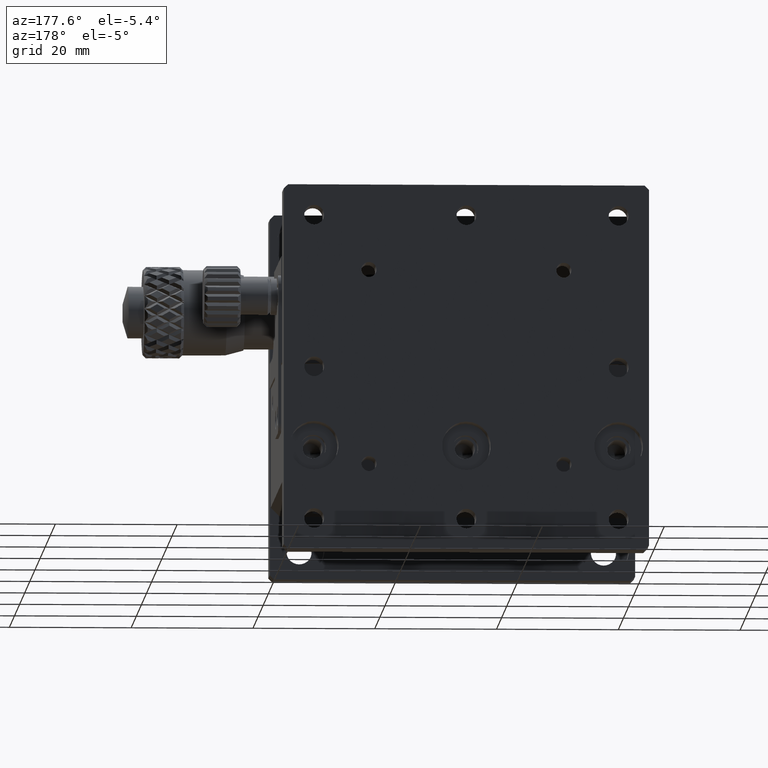
[diagram: clean part render]
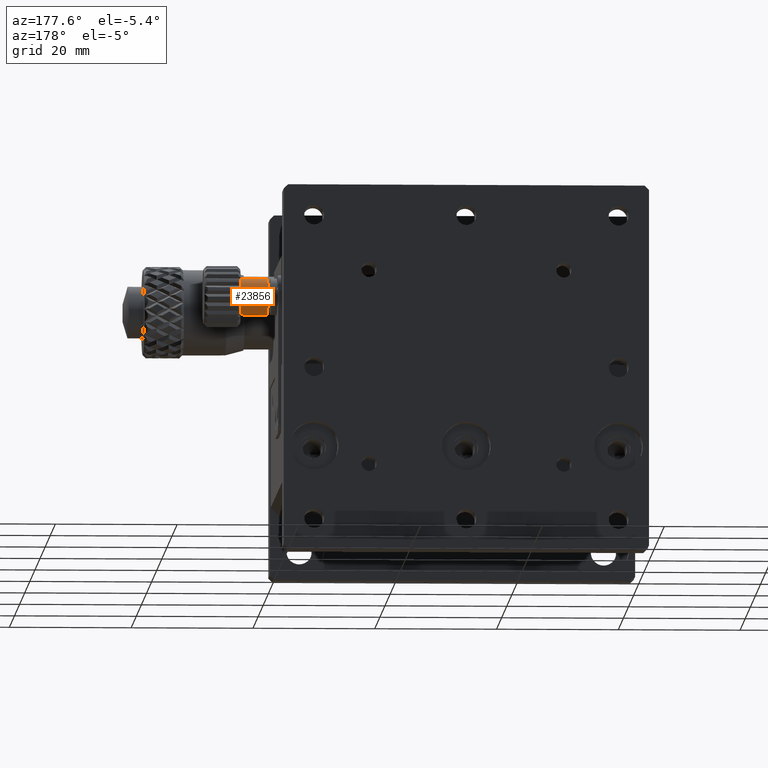
[diagram: same view with one face highlighted and labeled with its STEP entity id]
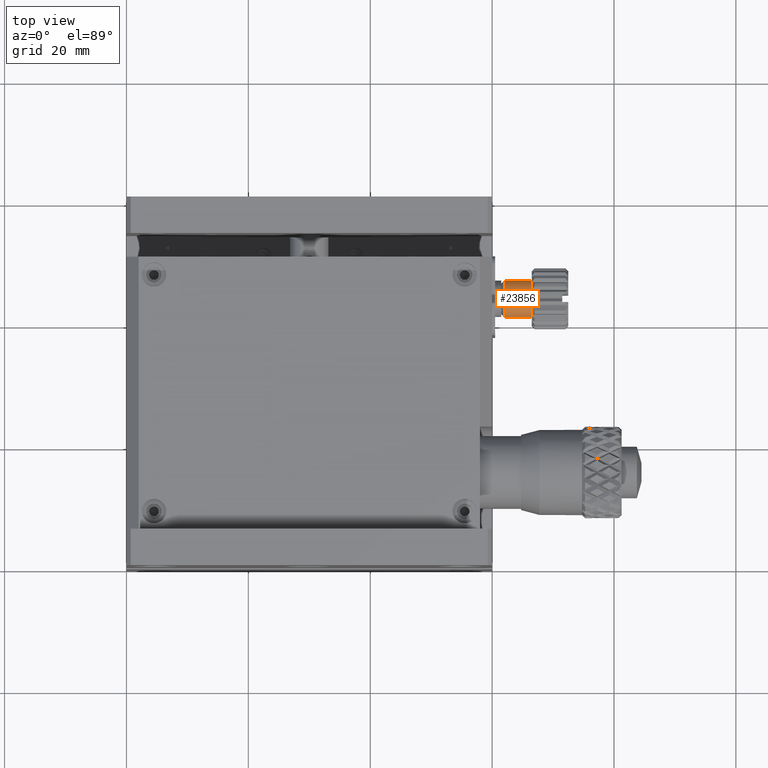
[diagram: same view with one face highlighted and labeled with its STEP entity id]
A machine part, auxiliary view. The second image highlights one B-rep face of the part: STEP entity #23856.
A second angle (top view) of the same face is appended — the face is thin or edge-on in the first view.
In plain terms, the highlighted cylindrical surface (bore or boss wall) has radius 3 mm, axis along (1, 0, 0).
Its self-contained STEP definition (entity closure, byte-faithful):
#738 = DIRECTION ( 'NONE',  ( -1.000000000000000000, -0.000000000000000000, -0.000000000000000000 ) ) ;
#3886 = DIRECTION ( 'NONE',  ( 1.000000000000000000, 0.000000000000000000, 0.000000000000000000 ) ) ;
#4843 = CARTESIAN_POINT ( 'NONE',  ( 66.50000000000000000, 44.00000000000000000, -20.00000000000000000 ) ) ;
#7324 = AXIS2_PLACEMENT_3D ( 'NONE', #15955, #738, #24010 ) ;
#8142 = FACE_OUTER_BOUND ( 'NONE', #9920, .T. ) ;
#8678 = DIRECTION ( 'NONE',  ( 0.000000000000000000, 0.000000000000000000, -1.000000000000000000 ) ) ;
#9479 = AXIS2_PLACEMENT_3D ( 'NONE', #21774, #19655, #8678 ) ;
#9920 = EDGE_LOOP ( 'NONE', ( #25232 ) ) ;
#10242 = CARTESIAN_POINT ( 'NONE',  ( 72.50000000000000000, 44.00000000000000000, -17.00000000000000000 ) ) ;
#11781 = VERTEX_POINT ( 'NONE', #4843 ) ;
#13202 = CIRCLE ( 'NONE', #7324, 2.999999999981808774 ) ;
#14623 = CYLINDRICAL_SURFACE ( 'NONE', #17543, 2.999999999999999112 ) ;
#14760 = DIRECTION ( 'NONE',  ( 0.000000000000000000, 0.000000000000000000, -1.000000000000000000 ) ) ;
#14854 = ORIENTED_EDGE ( 'NONE', *, *, #27693, .F. ) ;
#15955 = CARTESIAN_POINT ( 'NONE',  ( 61.99999999995498001, 44.00000000000000000, -17.00000000000000000 ) ) ;
#16572 = EDGE_CURVE ( 'NONE', #11781, #11781, #18025, .T. ) ;
#17543 = AXIS2_PLACEMENT_3D ( 'NONE', #10242, #3886, #14760 ) ;
#18025 = CIRCLE ( 'NONE', #9479, 2.999999999999999112 ) ;
#19401 = EDGE_LOOP ( 'NONE', ( #14854 ) ) ;
#19655 = DIRECTION ( 'NONE',  ( -1.000000000000000000, -0.000000000000000000, -0.000000000000000000 ) ) ;
#21403 = FACE_OUTER_BOUND ( 'NONE', #19401, .T. ) ;
#21774 = CARTESIAN_POINT ( 'NONE',  ( 66.50000000000000000, 44.00000000000000000, -17.00000000000000000 ) ) ;
#23856 = ADVANCED_FACE ( 'NONE', ( #21403, #8142 ), #14623, .T. ) ;
#24010 = DIRECTION ( 'NONE',  ( 0.000000000000000000, 0.000000000000000000, -1.000000000000000000 ) ) ;
#25232 = ORIENTED_EDGE ( 'NONE', *, *, #16572, .T. ) ;
#26756 = CARTESIAN_POINT ( 'NONE',  ( 61.99999999995498001, 44.00000000000000000, -19.99999999998181011 ) ) ;
#27312 = VERTEX_POINT ( 'NONE', #26756 ) ;
#27693 = EDGE_CURVE ( 'NONE', #27312, #27312, #13202, .T. ) ;